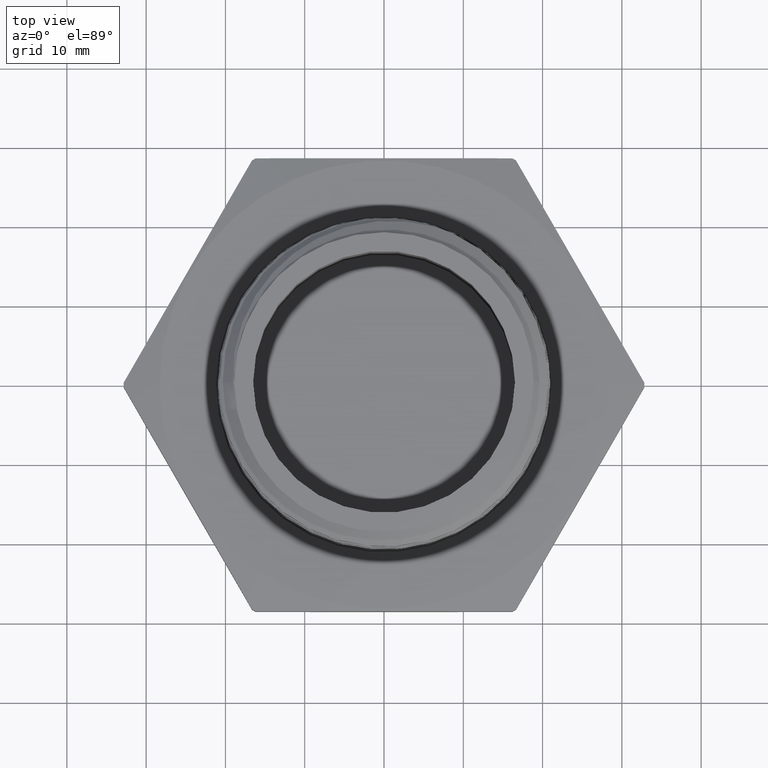
[diagram: clean part render]
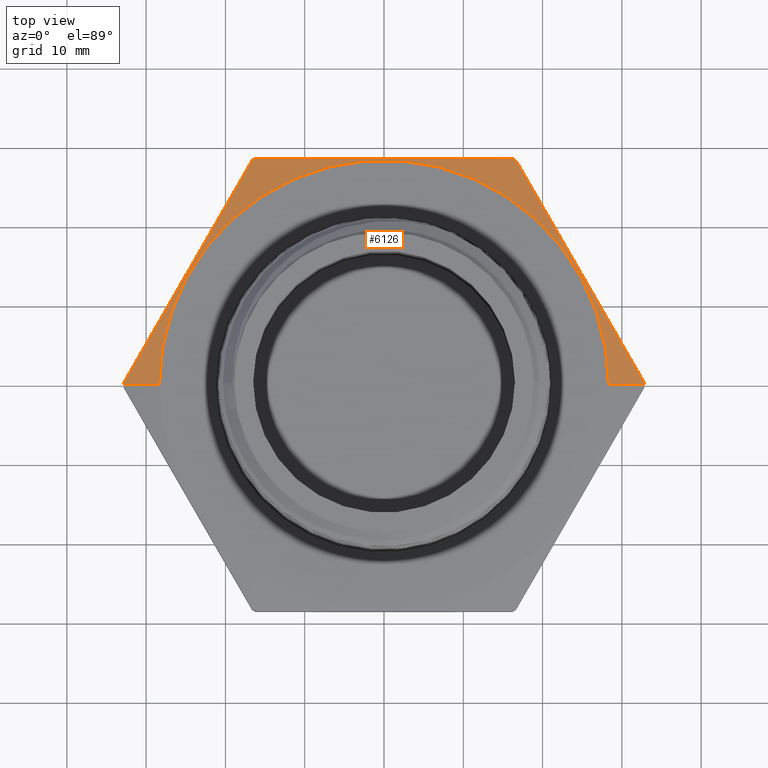
[diagram: same view with one face highlighted and labeled with its STEP entity id]
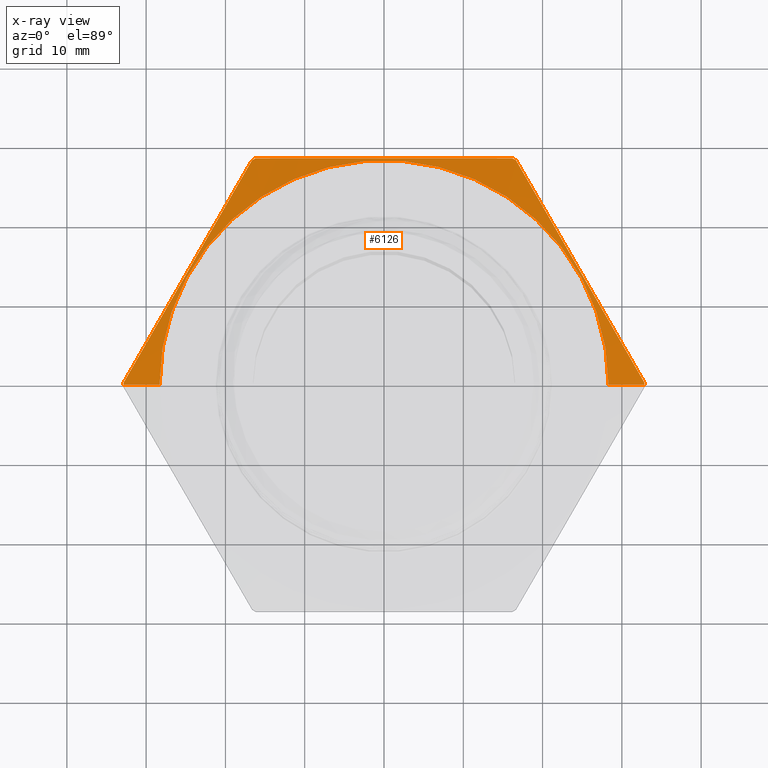
[diagram: x-ray of the same camera — body ghosted, the highlighted face saturated]
A machine part, top view. The second image highlights one B-rep face of the part: STEP entity #6126.
The next image is the same camera in x-ray: the body ghosted, the highlighted face saturated — about 0% of this face is hidden behind the body in this view.
In plain terms, the highlighted conical surface has half-angle 78 deg.
Its self-contained STEP definition (entity closure, byte-faithful):
#39 = EDGE_LOOP ( 'NONE', ( #6063, #5954, #6053, #5944, #296, #295, #294, #293, #292, #291 ) ) ;
#118 = CIRCLE ( 'NONE', #4587, 1.293038105676658200 ) ;
#121 = LINE ( 'NONE', #4701, #123 ) ;
#122 = CIRCLE ( 'NONE', #4585, 1.293038105676658200 ) ;
#123 = VECTOR ( 'NONE', #4700, 39.37007874015748100 ) ;
#124 = CIRCLE ( 'NONE', #4586, 1.293038105676658200 ) ;
#125 = CIRCLE ( 'NONE', #4588, 1.293038105676658200 ) ;
#127 = LINE ( 'NONE', #4747, #129 ) ;
#129 = VECTOR ( 'NONE', #4736, 39.37007874015748100 ) ;
#131 = CIRCLE ( 'NONE', #4590, 1.115000000000000200 ) ;
#246 = B_SPLINE_CURVE_WITH_KNOTS ( 'NONE', 3,
 ( #4710, #4709, #4714, #4715, #4716, #4717, #4718, #4719, #4720 ),
 .UNSPECIFIED., .F., .F.,
 ( 4, 2, 1, 2, 4 ),
 ( 1.908587031557295900E-006, 0.008097324754050089200, 0.01619274092106861800, 0.02428815708808714600, 0.03238357325510567200 ),
 .UNSPECIFIED. ) ;
#247 = B_SPLINE_CURVE_WITH_KNOTS ( 'NONE', 3,
 ( #4721, #4722, #4726, #4727, #4728, #4729, #4730, #4731, #4732, #4733 ),
 .UNSPECIFIED., .F., .F.,
 ( 4, 2, 2, 2, 4 ),
 ( 0.02769100706627817800, 0.03581872669892850700, 0.04394644633157883400, 0.05207416596422916700, 0.06020188559687950100 ),
 .UNSPECIFIED. ) ;
#248 = B_SPLINE_CURVE_WITH_KNOTS ( 'NONE', 3,
 ( #4734, #4735, #4740, #4741, #4742, #4743, #4744, #4745, #4746 ),
 .UNSPECIFIED., .F., .F.,
 ( 4, 2, 1, 2, 4 ),
 ( 1.908587031433678200E-006, 0.008097324754049976500, 0.01619274092106851700, 0.02428815708808706000, 0.03238357325510560200 ),
 .UNSPECIFIED. ) ;
#291 = ORIENTED_EDGE ( 'NONE', *, *, #4510, .F. ) ;
#292 = ORIENTED_EDGE ( 'NONE', *, *, #4513, .F. ) ;
#293 = ORIENTED_EDGE ( 'NONE', *, *, #4512, .F. ) ;
#294 = ORIENTED_EDGE ( 'NONE', *, *, #4511, .F. ) ;
#295 = ORIENTED_EDGE ( 'NONE', *, *, #4514, .F. ) ;
#296 = ORIENTED_EDGE ( 'NONE', *, *, #4517, .F. ) ;
#906 = DIRECTION ( 'NONE',  ( -1.000000000000000000, 0.0000000000000000000, 1.225043943347203100E-016 ) ) ;
#907 = CARTESIAN_POINT ( 'NONE',  ( 3.011967715085720700E-017, 0.0000000000000000000, 0.2399999999999998500 ) ) ;
#908 = DIRECTION ( 'NONE',  ( -1.254986547952384500E-016, -0.0000000000000000000, -1.000000000000000000 ) ) ;
#1046 = FACE_OUTER_BOUND ( 'NONE', #39, .T. ) ;
#1051 = CONICAL_SURFACE ( 'NONE', #4672, 1.115000000000000200, 1.361356816555583600 ) ;
#4185 = VERTEX_POINT ( 'NONE', #7627 ) ;
#4201 = VERTEX_POINT ( 'NONE', #7642 ) ;
#4206 = VERTEX_POINT ( 'NONE', #7647 ) ;
#4208 = VERTEX_POINT ( 'NONE', #7649 ) ;
#4210 = VERTEX_POINT ( 'NONE', #7651 ) ;
#4211 = VERTEX_POINT ( 'NONE', #7652 ) ;
#4212 = VERTEX_POINT ( 'NONE', #7653 ) ;
#4213 = VERTEX_POINT ( 'NONE', #7654 ) ;
#4214 = VERTEX_POINT ( 'NONE', #7655 ) ;
#4215 = VERTEX_POINT ( 'NONE', #7656 ) ;
#4510 = EDGE_CURVE ( 'NONE', #4185, #4215, #121, .T. ) ;
#4511 = EDGE_CURVE ( 'NONE', #4213, #4208, #122, .T. ) ;
#4512 = EDGE_CURVE ( 'NONE', #4214, #4213, #246, .T. ) ;
#4513 = EDGE_CURVE ( 'NONE', #4215, #4214, #124, .T. ) ;
#4514 = EDGE_CURVE ( 'NONE', #4208, #4210, #247, .T. ) ;
#4515 = EDGE_CURVE ( 'NONE', #4211, #4212, #118, .T. ) ;
#4516 = EDGE_CURVE ( 'NONE', #4206, #4211, #248, .T. ) ;
#4517 = EDGE_CURVE ( 'NONE', #4210, #4206, #125, .T. ) ;
#4518 = EDGE_CURVE ( 'NONE', #4201, #4212, #127, .T. ) ;
#4521 = EDGE_CURVE ( 'NONE', #4185, #4201, #131, .T. ) ;
#4585 = AXIS2_PLACEMENT_3D ( 'NONE', #4711, #4712, #4713 ) ;
#4586 = AXIS2_PLACEMENT_3D ( 'NONE', #4723, #4724, #4725 ) ;
#4587 = AXIS2_PLACEMENT_3D ( 'NONE', #4737, #4738, #4739 ) ;
#4588 = AXIS2_PLACEMENT_3D ( 'NONE', #4748, #4749, #4750 ) ;
#4590 = AXIS2_PLACEMENT_3D ( 'NONE', #4758, #4759, #4760 ) ;
#4672 = AXIS2_PLACEMENT_3D ( 'NONE', #907, #908, #906 ) ;
#4700 = DIRECTION ( 'NONE',  ( -0.9781476007338069100, 0.0000000000000000000, -0.2079116908177528500 ) ) ;
#4701 = CARTESIAN_POINT ( 'NONE',  ( -1.115000000000000200, 0.0000000000000000000, 0.2399999999999999900 ) ) ;
#4709 = CARTESIAN_POINT ( 'NONE',  ( -1.239876222532379800, 0.1024713874773431900, 0.2132890800781964100 ) ) ;
#4710 = CARTESIAN_POINT ( 'NONE',  ( -1.292995751187357100, 0.01046566497281200200, 0.2021568324111268100 ) ) ;
#4711 = CARTESIAN_POINT ( 'NONE',  ( 2.537041052526285200E-017, 0.0000000000000000000, 0.2021568324111266400 ) ) ;
#4712 = DIRECTION ( 'NONE',  ( -1.254986547952384500E-016, -0.0000000000000000000, -1.000000000000000000 ) ) ;
#4713 = DIRECTION ( 'NONE',  ( -1.000000000000000000, 0.0000000000000000000, 1.320459921903588800E-016 ) ) ;
#4714 = CARTESIAN_POINT ( 'NONE',  ( -1.186756693877402800, 0.1944771099818747600, 0.2223080740063902200 ) ) ;
#4715 = CARTESIAN_POINT ( 'NONE',  ( -1.080517636567448000, 0.3784885549909373600, 0.2346186185401576700 ) ) ;
#4716 = CARTESIAN_POINT ( 'NONE',  ( -0.9742785792574932800, 0.5625000000000002200, 0.2411302502264420500 ) ) ;
#4717 = CARTESIAN_POINT ( 'NONE',  ( -0.8680395219475387500, 0.7465114450090633000, 0.2346186185401576400 ) ) ;
#4718 = CARTESIAN_POINT ( 'NONE',  ( -0.7618004646375844400, 0.9305228900181263800, 0.2223080740063900200 ) ) ;
#4719 = CARTESIAN_POINT ( 'NONE',  ( -0.7086809359826069500, 1.022528612522657100, 0.2132890800781962500 ) ) ;
#4720 = CARTESIAN_POINT ( 'NONE',  ( -0.6555614073276301300, 1.114534335027188600, 0.2021568324111267000 ) ) ;
#4721 = CARTESIAN_POINT ( 'NONE',  ( -0.6374343438597271900, 1.124999999999999800, 0.2021568324111267000 ) ) ;
#4722 = CARTESIAN_POINT ( 'NONE',  ( -0.5312776202941625900, 1.125000000000000200, 0.2132804527460538700 ) ) ;
#4723 = CARTESIAN_POINT ( 'NONE',  ( 2.537041052526285200E-017, 0.0000000000000000000, 0.2021568324111266400 ) ) ;
#4724 = DIRECTION ( 'NONE',  ( -1.254986547952384500E-016, -0.0000000000000000000, -1.000000000000000000 ) ) ;
#4725 = DIRECTION ( 'NONE',  ( -1.000000000000000000, 0.0000000000000000000, 1.320459921903588800E-016 ) ) ;
#4726 = CARTESIAN_POINT ( 'NONE',  ( -0.4247182803385509100, 1.125000000000000200, 0.2223289654415552500 ) ) ;
#4727 = CARTESIAN_POINT ( 'NONE',  ( -0.2119210197563303500, 1.125000000000000000, 0.2346437637095195600 ) ) ;
#4728 = CARTESIAN_POINT ( 'NONE',  ( -0.1055877381477456100, 1.125000000000000200, 0.2378878926551206700 ) ) ;
#4729 = CARTESIAN_POINT ( 'NONE',  ( 0.1069326787727581700, 1.125000000000000200, 0.2378608906701118700 ) ) ;
#4730 = CARTESIAN_POINT ( 'NONE',  ( 0.2131198371923395700, 1.125000000000000200, 0.2345907898882506100 ) ) ;
#4731 = CARTESIAN_POINT ( 'NONE',  ( 0.4253645999511002600, 1.125000000000000200, 0.2222750160309167600 ) ) ;
#4732 = CARTESIAN_POINT ( 'NONE',  ( 0.5314230090217723100, 1.125000000000000200, 0.2132652182045891000 ) ) ;
#4733 = CARTESIAN_POINT ( 'NONE',  ( 0.6374343438597271900, 1.124999999999999800, 0.2021568324111265600 ) ) ;
#4734 = CARTESIAN_POINT ( 'NONE',  ( 0.6555614073276288000, 1.114534335027189700, 0.2021568324111265600 ) ) ;
#4735 = CARTESIAN_POINT ( 'NONE',  ( 0.7086809359826065100, 1.022528612522658000, 0.2132890800781960800 ) ) ;
#4736 = DIRECTION ( 'NONE',  ( 0.9781476007338069100, 1.197885328332319900E-016, -0.2079116908177530700 ) ) ;
#4737 = CARTESIAN_POINT ( 'NONE',  ( 2.537041052526285200E-017, 0.0000000000000000000, 0.2021568324111266400 ) ) ;
#4738 = DIRECTION ( 'NONE',  ( -1.254986547952384500E-016, -0.0000000000000000000, -1.000000000000000000 ) ) ;
#4739 = DIRECTION ( 'NONE',  ( -1.000000000000000000, 0.0000000000000000000, 1.320459921903588800E-016 ) ) ;
#4740 = CARTESIAN_POINT ( 'NONE',  ( 0.7618004646375840000, 0.9305228900181267100, 0.2223080740063898000 ) ) ;
#4741 = CARTESIAN_POINT ( 'NONE',  ( 0.8680395219475387500, 0.7465114450090635200, 0.2346186185401573400 ) ) ;
#4742 = CARTESIAN_POINT ( 'NONE',  ( 0.9742785792574932800, 0.5625000000000006700, 0.2411302502264418600 ) ) ;
#4743 = CARTESIAN_POINT ( 'NONE',  ( 1.080517636567448000, 0.3784885549909374800, 0.2346186185401573100 ) ) ;
#4744 = CARTESIAN_POINT ( 'NONE',  ( 1.186756693877403000, 0.1944771099818744500, 0.2223080740063897700 ) ) ;
#4745 = CARTESIAN_POINT ( 'NONE',  ( 1.239876222532380100, 0.1024713874773428700, 0.2132890800781960200 ) ) ;
#4746 = CARTESIAN_POINT ( 'NONE',  ( 1.292995751187357100, 0.01046566497281097900, 0.2021568324111264500 ) ) ;
#4747 = CARTESIAN_POINT ( 'NONE',  ( 1.115000000000000200, 1.365481181049299100E-016, 0.2399999999999997400 ) ) ;
#4748 = CARTESIAN_POINT ( 'NONE',  ( 2.537041052526285200E-017, 0.0000000000000000000, 0.2021568324111266400 ) ) ;
#4749 = DIRECTION ( 'NONE',  ( -1.254986547952384500E-016, -0.0000000000000000000, -1.000000000000000000 ) ) ;
#4750 = DIRECTION ( 'NONE',  ( -1.000000000000000000, 0.0000000000000000000, 1.320459921903588800E-016 ) ) ;
#4758 = CARTESIAN_POINT ( 'NONE',  ( 3.011967715085720700E-017, 0.0000000000000000000, 0.2399999999999998500 ) ) ;
#4759 = DIRECTION ( 'NONE',  ( -1.254986547952384500E-016, -0.0000000000000000000, -1.000000000000000000 ) ) ;
#4760 = DIRECTION ( 'NONE',  ( -1.000000000000000000, 0.0000000000000000000, 1.225043943347203100E-016 ) ) ;
#5944 = ORIENTED_EDGE ( 'NONE', *, *, #4516, .F. ) ;
#5954 = ORIENTED_EDGE ( 'NONE', *, *, #4518, .T. ) ;
#6053 = ORIENTED_EDGE ( 'NONE', *, *, #4515, .F. ) ;
#6063 = ORIENTED_EDGE ( 'NONE', *, *, #4521, .T. ) ;
#6126 = ADVANCED_FACE ( 'NONE', ( #1046 ), #1051, .T. ) ;
#7627 = CARTESIAN_POINT ( 'NONE',  ( -1.115000000000000200, 0.0000000000000000000, 0.2399999999999999900 ) ) ;
#7642 = CARTESIAN_POINT ( 'NONE',  ( 1.115000000000000200, 1.365481181049299100E-016, 0.2399999999999997400 ) ) ;
#7647 = CARTESIAN_POINT ( 'NONE',  ( 0.6555614073276288000, 1.114534335027189700, 0.2021568324111265600 ) ) ;
#7649 = CARTESIAN_POINT ( 'NONE',  ( -0.6374343438597271900, 1.124999999999999800, 0.2021568324111267000 ) ) ;
#7651 = CARTESIAN_POINT ( 'NONE',  ( 0.6374343438597271900, 1.124999999999999800, 0.2021568324111265600 ) ) ;
#7652 = CARTESIAN_POINT ( 'NONE',  ( 1.292995751187357100, 0.01046566497281097900, 0.2021568324111264500 ) ) ;
#7653 = CARTESIAN_POINT ( 'NONE',  ( 1.293038105676658200, 1.583514977292476600E-016, 0.2021568324111264500 ) ) ;
#7654 = CARTESIAN_POINT ( 'NONE',  ( -0.6555614073276301300, 1.114534335027188600, 0.2021568324111267000 ) ) ;
#7655 = CARTESIAN_POINT ( 'NONE',  ( -1.292995751187357100, 0.01046566497281200200, 0.2021568324111268100 ) ) ;
#7656 = CARTESIAN_POINT ( 'NONE',  ( -1.293038105676658200, 0.0000000000000000000, 0.2021568324111268100 ) ) ;